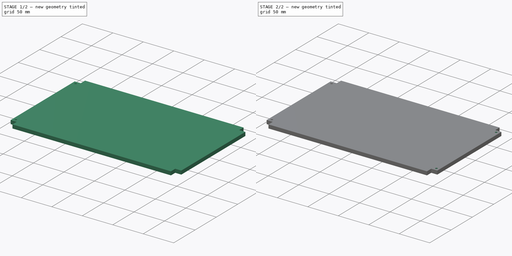
[diagram: build sequence overview — one tinted view per stage of 2, left to right]
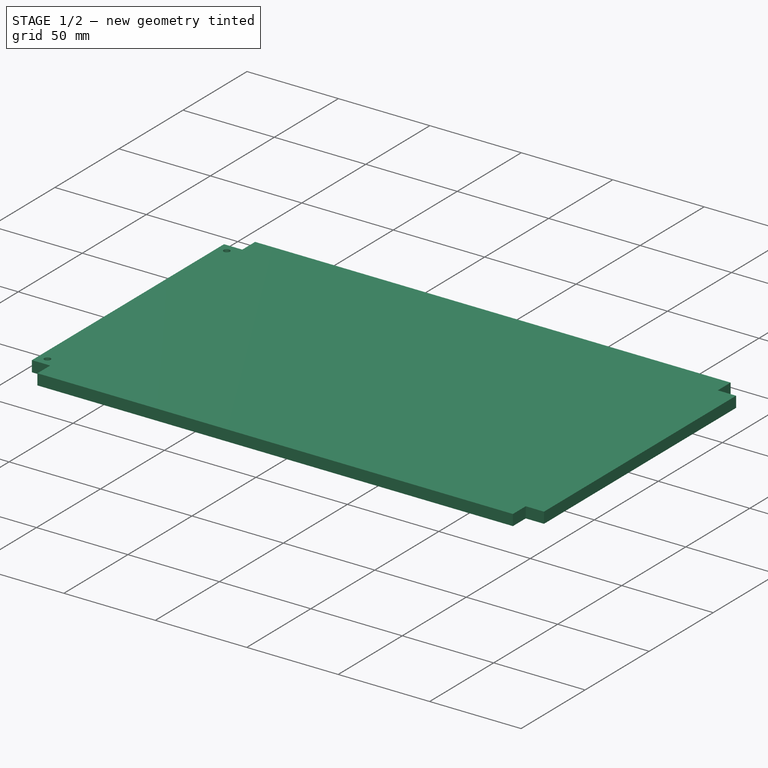
[diagram: stage 1 of 2 — iso view after this stage's code; geometry added in this stage tinted green]
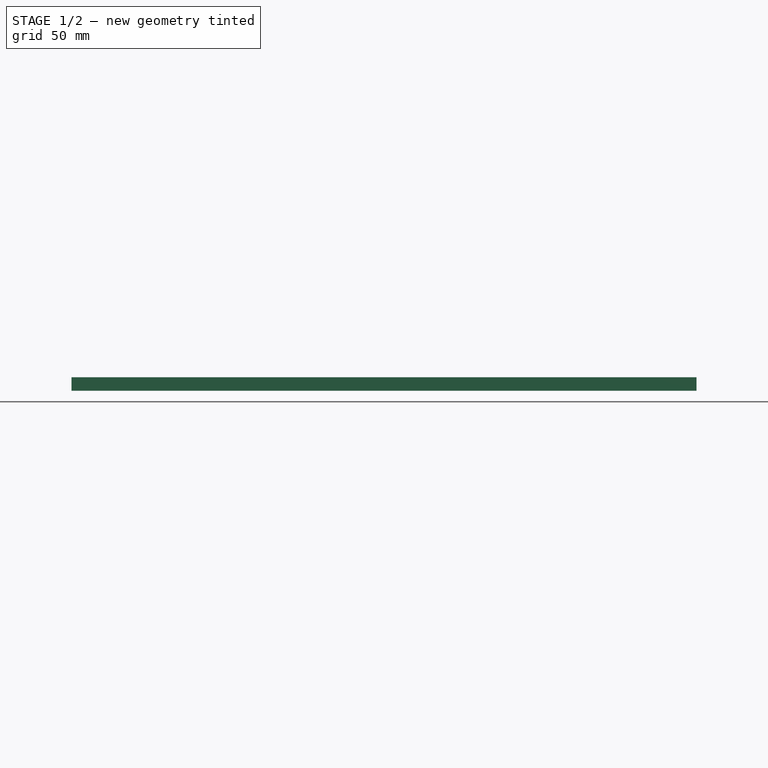
[diagram: stage 1 of 2 — front view after this stage's code; geometry added in this stage tinted green]
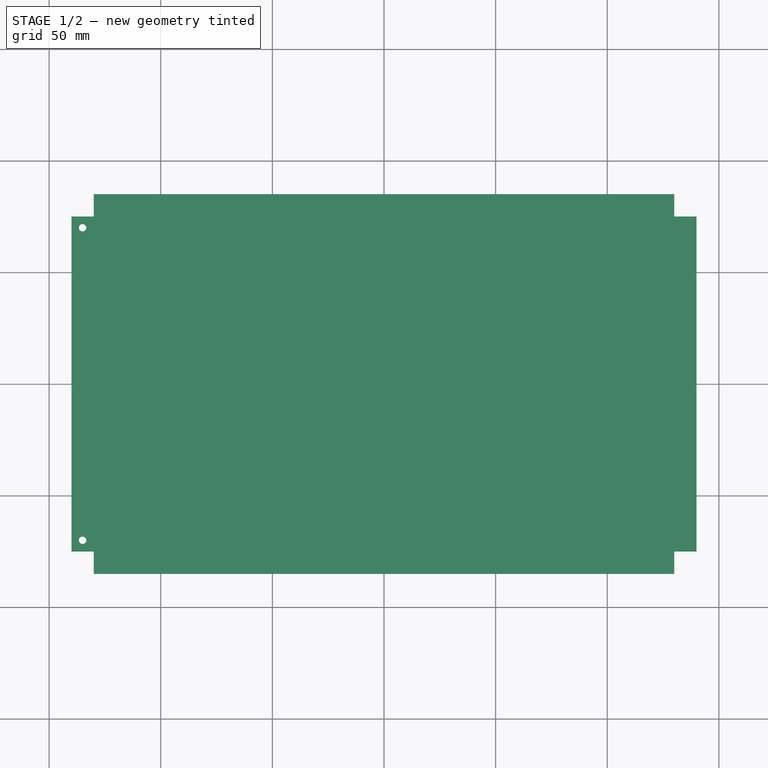
[diagram: stage 1 of 2 — top view after this stage's code; geometry added in this stage tinted green]
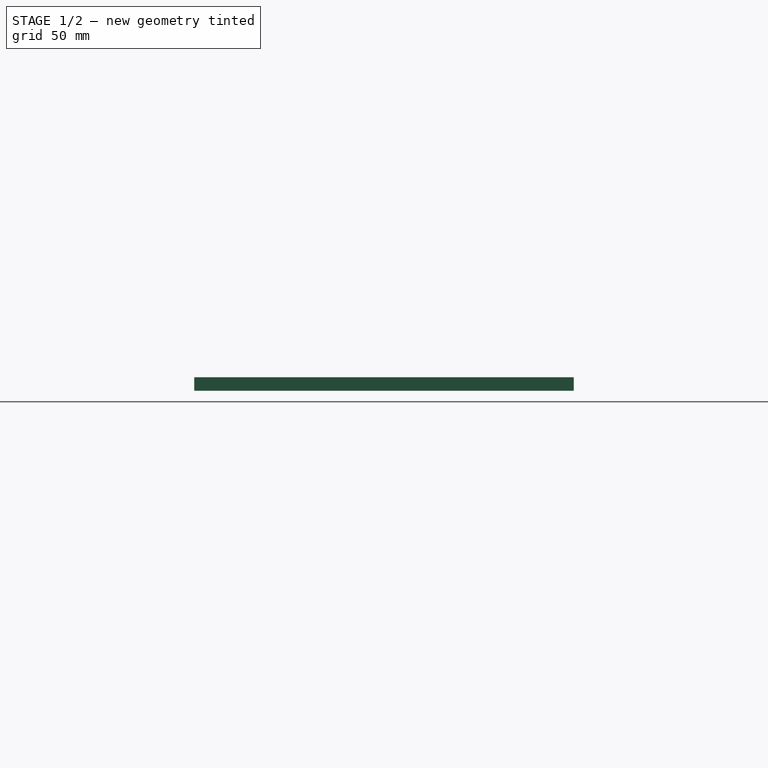
[diagram: stage 1 of 2 — right view after this stage's code; geometry added in this stage tinted green]
FCSTD DOCUMENT  (FreeCAD 0.19R24291 (Git))
Label: Plaque_etage_actionneurs
License: All rights reserved
LicenseURL: http://en.wikipedia.org/wiki/All_rights_reserved
objects: Sketcher::SketchObject×2, PartDesign::Pad×1, PartDesign::Pocket×1, PartDesign::Mirrored×1, PartDesign::Body×1
note: 8 computed .brp shape members not serialized (recipe doc carries the construction recipe); baked Part::Feature solids carry a one-line shape summary decoded from their .brp

FEATURE [Sketcher::SketchObject] Sketch
  FullyConstrained = true
  MapMode = 5
  Support = -> [XY_Plane]
  sketch-geometry (18):
    g0: LineSegment StartX=-140 StartY=-75 StartZ=0 EndX=-140 EndY=75 EndZ=0
    g1: LineSegment StartX=-140 StartY=75 StartZ=0 EndX=-130 EndY=75 EndZ=0
    g2: LineSegment StartX=-130 StartY=75 StartZ=0 EndX=-130 EndY=85 EndZ=0
    g3: LineSegment StartX=-130 StartY=85 StartZ=0 EndX=130 EndY=85 EndZ=0
    g4: LineSegment StartX=130 StartY=85 StartZ=0 EndX=130 EndY=75 EndZ=0
    g5: LineSegment StartX=130 StartY=75 StartZ=0 EndX=140 EndY=75 EndZ=0
    g6: LineSegment StartX=140 StartY=75 StartZ=0 EndX=140 EndY=-75 EndZ=0
    g7: LineSegment StartX=-140 StartY=-75 StartZ=0 EndX=-130 EndY=-75 EndZ=0
    g8: LineSegment StartX=-130 StartY=-75 StartZ=0 EndX=-130 EndY=-85 EndZ=0
    g9: LineSegment StartX=-130 StartY=-85 StartZ=0 EndX=130 EndY=-85 EndZ=0
    g10: LineSegment StartX=130 StartY=-85 StartZ=0 EndX=130 EndY=-75 EndZ=0
    g11: LineSegment StartX=130 StartY=-75 StartZ=0 EndX=140 EndY=-75 EndZ=0
    g12: LineSegment StartX=140 StartY=-85 StartZ=0 EndX=-140 EndY=-85 EndZ=0
    g13: LineSegment StartX=-140 StartY=-85 StartZ=0 EndX=-140 EndY=85 EndZ=0
    g14: LineSegment StartX=-140 StartY=85 StartZ=0 EndX=140 EndY=85 EndZ=0
    g15: LineSegment StartX=140 StartY=85 StartZ=0 EndX=140 EndY=-85 EndZ=0
    g16: LineSegment StartX=-140 StartY=85 StartZ=0 EndX=140 EndY=-85 EndZ=0
    g17: LineSegment StartX=-140 StartY=-85 StartZ=0 EndX=140 EndY=85 EndZ=0
  constraints (52):
    c: Vertical(g0)
    c: Coincident(g0,g1)
    c: Horizontal(g1)
    c: Coincident(g1,g2)
    c: Vertical(g2)
    c: Coincident(g2,g3)
    c: Horizontal(g3)
    c: Coincident(g3,g4)
    c: Vertical(g4)
    c: Coincident(g4,g5)
    c: Horizontal(g5)
    c: Coincident(g5,g6)
    c: Vertical(g6)
    c: Coincident(g0,g7)
    c: Horizontal(g7)
    c: Coincident(g7,g8)
    c: Vertical(g8)
    c: Coincident(g8,g9)
    c: Horizontal(g9)
    c: Coincident(g9,g10)
    c: Vertical(g10)
    c: Coincident(g10,g11)
    c: Coincident(g11,g6)
    c: Horizontal(g11)
    c: DistanceX(g0,g5) = 280
    c: DistanceY(g1,g2) = 10
    c: DistanceX(g1,g1) = 10
    c: Equal(g1,g7)
    c: Equal(g7,g8)
    c: Equal(g8,g10)
    c: Equal(g10,g11)
    c: Equal(g11,g5)
    c: Equal(g5,g4)
    c: Coincident(g12,g13)
    c: Coincident(g13,g14)
    c: Coincident(g14,g15)
    c: Coincident(g15,g12)
    c: Horizontal(g12)
    c: Horizontal(g14)
    c: Vertical(g13)
    c: Vertical(g15)
    c: PointOnObject(g2,g14)
    c: PointOnObject(g0,g13)
    c: PointOnObject(g8,g12)
    c: PointOnObject(g6,g15)
    c: Coincident(g16,g13)
    c: Coincident(g16,g12)
    c: Coincident(g17,g12)
    c: Coincident(g17,g14)
    c: DistanceY(g12,g14) = 170
    c: PointOnObject(g-1,g17)
    c: PointOnObject(g-1,g16)
FEATURE [PartDesign::Pad] Pad  label="Base"
  Direction = (1,1,1)
  Length = 6
  Length2 = 100
  Profile = -> Sketch
  Type = 0
FEATURE [Sketcher::SketchObject] Sketch001
  ExternalGeometry = -> [Pad]
  FullyConstrained = true
  MapMode = 5
  Placement = pos=(0,0,6) rot=(0,0,1;0rad)
  Support = -> [Pad]
  sketch-geometry (2):
    g0: Circle CenterX=-135 CenterY=70 CenterZ=0 NormalX=0 NormalY=0 NormalZ=1 AngleXU=0 Radius=1.7
    g1: Circle CenterX=-135 CenterY=-70 CenterZ=0 NormalX=0 NormalY=0 NormalZ=1 AngleXU=0 Radius=1.7
  constraints (6):
    c: Radius(g0) = 1.7
    c: DistanceX(g-3,g0) = 5
    c: DistanceY(g0,g-3) = 5
    c: DistanceX(g-3,g1) = 5
    c: DistanceY(g-3,g1) = 5
    c: Equal(g0,g1)
FEATURE [PartDesign::Pocket] Pocket  label="Fixation-Plaque"
  BaseFeature = -> Pad
  Length = 5
  Length2 = 100
  Profile = -> Sketch001
  Type = 1
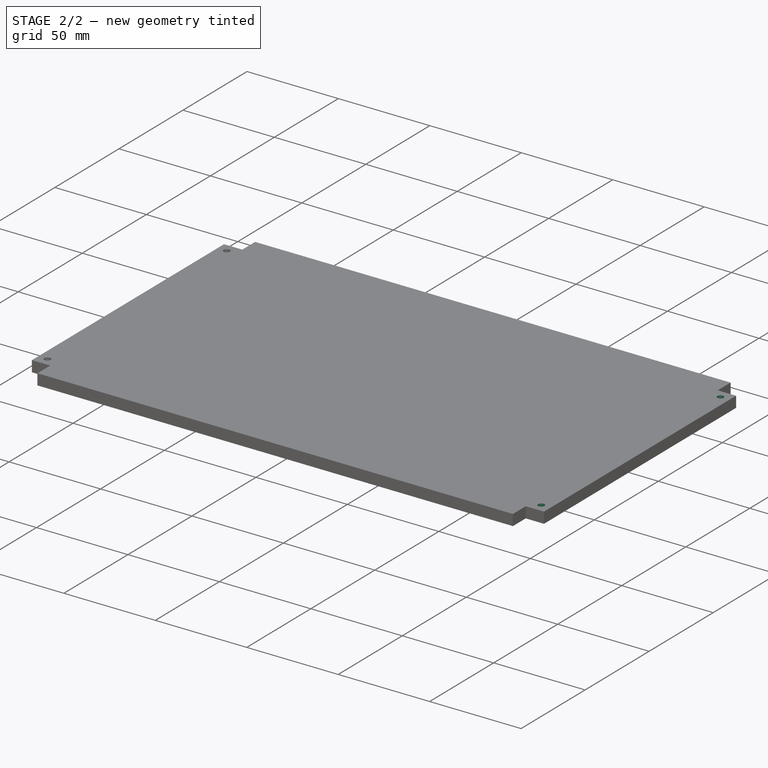
[diagram: stage 2 of 2 — iso view after this stage's code; geometry added in this stage tinted green]
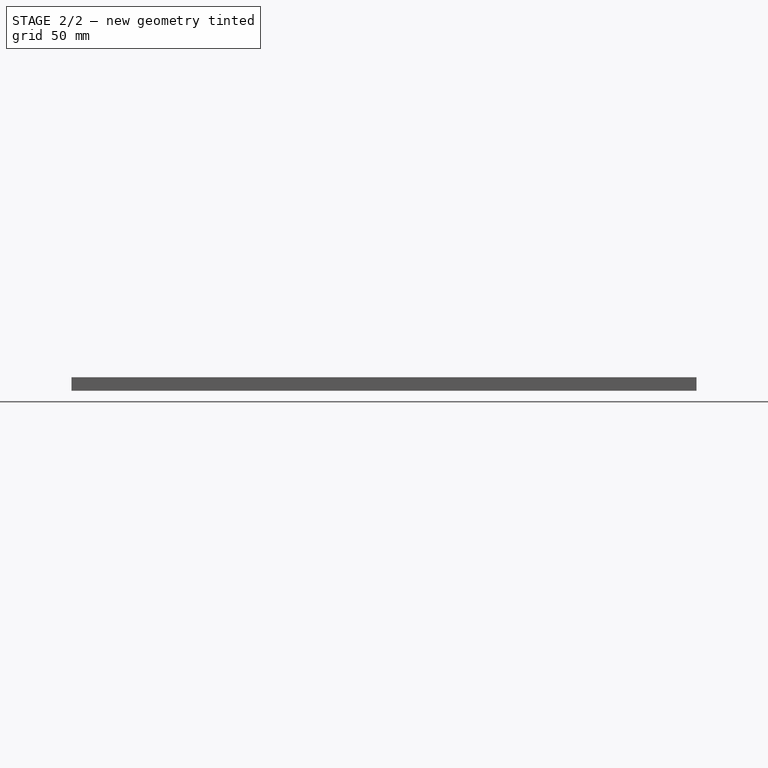
[diagram: stage 2 of 2 — front view after this stage's code; geometry added in this stage tinted green]
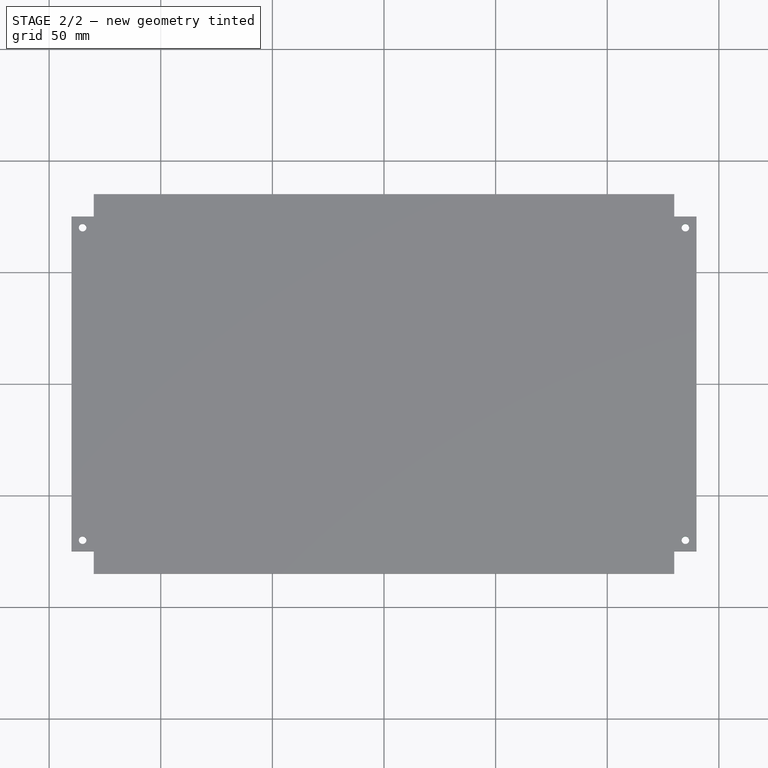
[diagram: stage 2 of 2 — top view after this stage's code; geometry added in this stage tinted green]
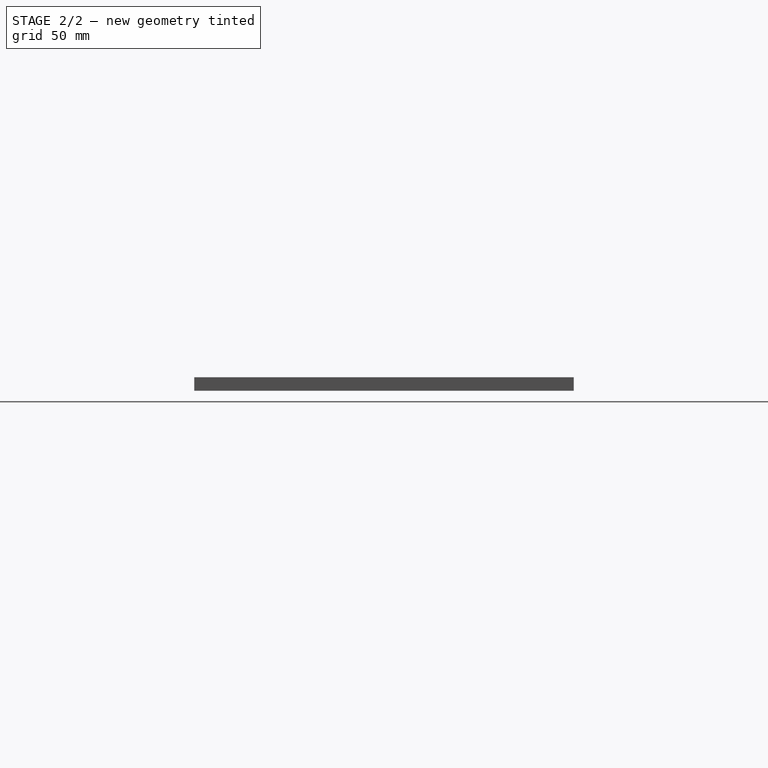
[diagram: stage 2 of 2 — right view after this stage's code; geometry added in this stage tinted green]
FEATURE [PartDesign::Mirrored] Mirrored  label="Fixation-Plaque-Mirrored"
  BaseFeature = -> Pocket
  MirrorPlane = -> Sketch001 [V_Axis]
  Originals = -> [Pocket]
FEATURE [PartDesign::Body] Body
  Group = -> [Sketch,Pad,Sketch001,Pocket,Mirrored]
  Origin = -> Origin
  Tip = -> Mirrored
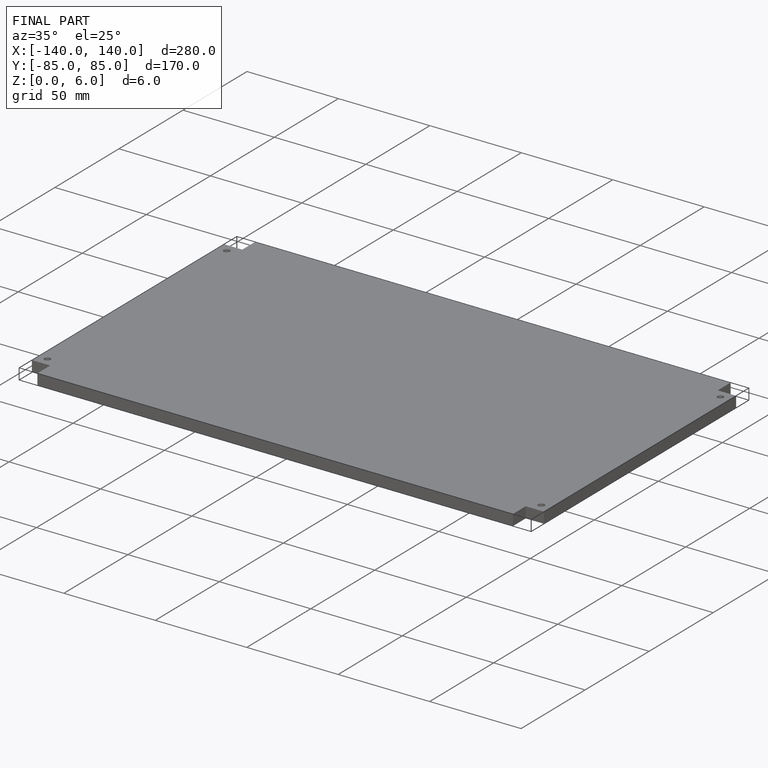
[diagram: finished part — iso view with bounding-box wireframe]
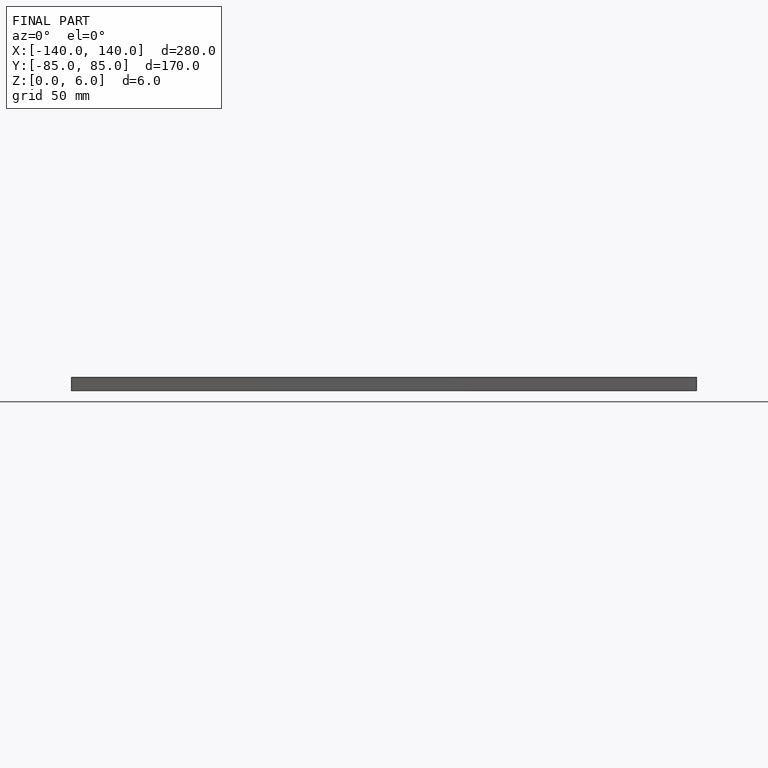
[diagram: finished part — front view with bounding-box wireframe]
